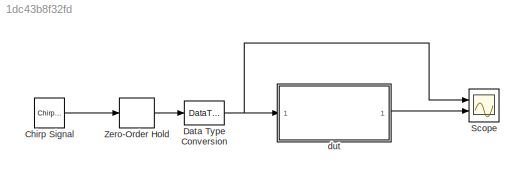
MODEL slx_1dc43b8f32fd
KIND model
CONFIG AbsTol = auto
CONFIG FixedStep = auto
CONFIG MaxStep = auto
CONFIG MinStep = auto
CONFIG RelTol = 1e-3
CONFIG SampleTimeConstraint = Unconstrained
CONFIG Solver = FixedStepDiscrete
CONFIG SolverMode = SingleTasking
CONFIG SolverName = FixedStepDiscrete
CONFIG StartTime = 0.0
CONFIG StopTime = 10.0
BLOCK [Reference] Chirp Signal  REF=simulink/Sources/Chirp Signal
  Ports = [0, 1]
  SourceBlock = simulink/Sources/Chirp Signal
  SourceType = chirp
BLOCK [DataTypeConversion] Data Type Conversion
  OutDataTypeStr = fixdt(1,16,12)
  RndMeth = Floor
  SaturateOnIntegerOverflow = off
BLOCK [Scope] Scope
  NumInputPorts = 2
  Ports = [2]
  ScopeSpecificationString = Simulink.scopes.TimeScopeBlockCfg('CurrentConfiguration', extmgr.ConfigurationSet(extmgr.Configuration('Core','General UI',true),extmgr.Configuration('Core','Source UI',true),extmgr.Configuration('Sources','WiredSimulink',true,'DataLoggingSaveFormat','StructureWithTime','DataLoggingDecimation','1','DataLoggingDecimateData',true),extmgr.Configuration('Visuals','Time Domain',true,'SerializedDisplays...<+2331ch>
BLOCK [ZeroOrderHold] Zero-Order Hold
  SampleTime = 1/1000
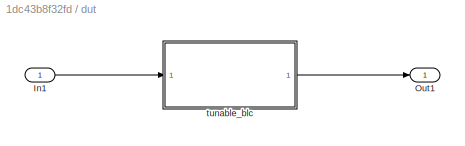
BLOCK [SubSystem] dut
  Ports = [1, 1]
  RequestExecContextInheritance = off
  Variant = off
BLOCK [Inport] dut/In1
  IconDisplay = Port number
BLOCK [Outport] dut/Out1
  IconDisplay = Port number
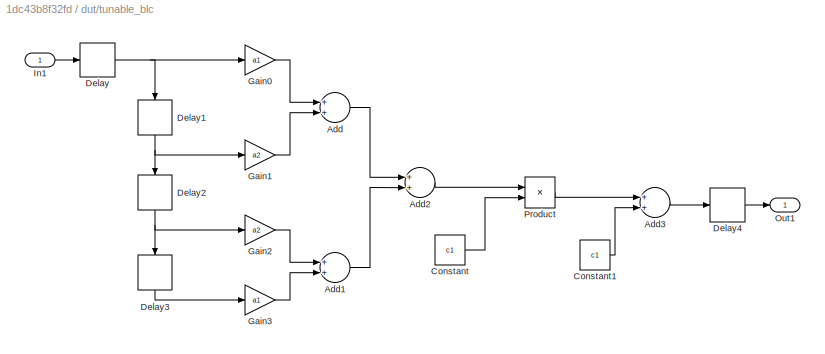
BLOCK [SubSystem] dut/tunable_blc
  Ports = [1, 1]
  RequestExecContextInheritance = off
  TreatAsAtomicUnit = on
  Variant = off
BLOCK [Sum] dut/tunable_blc/Add
  InputSameDT = off
  OutDataTypeStr = Inherit: Inherit via internal rule
  Ports = [2, 1]
  SaturateOnIntegerOverflow = off
BLOCK [Sum] dut/tunable_blc/Add1
  InputSameDT = off
  OutDataTypeStr = Inherit: Inherit via internal rule
  Ports = [2, 1]
  SaturateOnIntegerOverflow = off
BLOCK [Sum] dut/tunable_blc/Add2
  InputSameDT = off
  OutDataTypeStr = Inherit: Inherit via internal rule
  Ports = [2, 1]
  SaturateOnIntegerOverflow = off
BLOCK [Sum] dut/tunable_blc/Add3
  InputSameDT = off
  OutDataTypeStr = Inherit: Inherit via internal rule
  Ports = [2, 1]
  SaturateOnIntegerOverflow = off
BLOCK [Constant] dut/tunable_blc/Constant
  OutDataTypeStr = fixdt(1,16,12)
  Value = c1
BLOCK [Constant] dut/tunable_blc/Constant1
  OutDataTypeStr = fixdt(1,16,12)
  Value = c1
BLOCK [Delay] dut/tunable_blc/Delay
  DelayLength = 1
  InputPortMap = u0
  Ports = [1, 1]
BLOCK [Delay] dut/tunable_blc/Delay1
  DelayLength = 1
  InputPortMap = u0
  Ports = [1, 1]
BLOCK [Delay] dut/tunable_blc/Delay2
  DelayLength = 1
  InputPortMap = u0
  Ports = [1, 1]
BLOCK [Delay] dut/tunable_blc/Delay3
  DelayLength = 1
  InputPortMap = u0
  Ports = [1, 1]
BLOCK [Delay] dut/tunable_blc/Delay4
  DelayLength = 1
  InputPortMap = u0
  Ports = [1, 1]
BLOCK [Gain] dut/tunable_blc/Gain0
  Gain = a1
  ParamDataTypeStr = fixdt(1,16,12)
  SaturateOnIntegerOverflow = off
BLOCK [Gain] dut/tunable_blc/Gain1
  Gain = a2
  ParamDataTypeStr = fixdt(1,16,12)
  SaturateOnIntegerOverflow = off
BLOCK [Gain] dut/tunable_blc/Gain2
  Gain = a2
  ParamDataTypeStr = fixdt(1,16,12)
  SaturateOnIntegerOverflow = off
BLOCK [Gain] dut/tunable_blc/Gain3
  Gain = a1
  ParamDataTypeStr = fixdt(1,16,12)
  SaturateOnIntegerOverflow = off
BLOCK [Inport] dut/tunable_blc/In1
  IconDisplay = Port number
BLOCK [Outport] dut/tunable_blc/Out1
  IconDisplay = Port number
BLOCK [Product] dut/tunable_blc/Product
  InputSameDT = off
  OutDataTypeStr = Inherit: Inherit via internal rule
  Ports = [2, 1]
  SaturateOnIntegerOverflow = off
LINE Chirp Signal:1 -> Zero-Order Hold:1
NET Data Type Conversion:1 -> Scope:1, dut:1
LINE Zero-Order Hold:1 -> Data Type Conversion:1
LINE dut/In1:1 -> dut/tunable_blc:1
LINE dut/tunable_blc/Add1:1 -> dut/tunable_blc/Add2:2
LINE dut/tunable_blc/Add2:1 -> dut/tunable_blc/Product:1
LINE dut/tunable_blc/Add3:1 -> dut/tunable_blc/Delay4:1
LINE dut/tunable_blc/Add:1 -> dut/tunable_blc/Add2:1
LINE dut/tunable_blc/Constant1:1 -> dut/tunable_blc/Add3:2
LINE dut/tunable_blc/Constant:1 -> dut/tunable_blc/Product:2
NET dut/tunable_blc/Delay1:1 -> dut/tunable_blc/Delay2:1, dut/tunable_blc/Gain1:1
NET dut/tunable_blc/Delay2:1 -> dut/tunable_blc/Delay3:1, dut/tunable_blc/Gain2:1
LINE dut/tunable_blc/Delay3:1 -> dut/tunable_blc/Gain3:1
LINE dut/tunable_blc/Delay4:1 -> dut/tunable_blc/Out1:1
NET dut/tunable_blc/Delay:1 -> dut/tunable_blc/Delay1:1, dut/tunable_blc/Gain0:1
LINE dut/tunable_blc/Gain0:1 -> dut/tunable_blc/Add:1
LINE dut/tunable_blc/Gain1:1 -> dut/tunable_blc/Add:2
LINE dut/tunable_blc/Gain2:1 -> dut/tunable_blc/Add1:1
LINE dut/tunable_blc/Gain3:1 -> dut/tunable_blc/Add1:2
LINE dut/tunable_blc/In1:1 -> dut/tunable_blc/Delay:1
LINE dut/tunable_blc/Product:1 -> dut/tunable_blc/Add3:1
LINE dut/tunable_blc:1 -> dut/Out1:1
LINE dut:1 -> Scope:2
note: NET lines group one-source signal fan-out (src -> all destinations, sorted); 1:1 wires keep LINE
